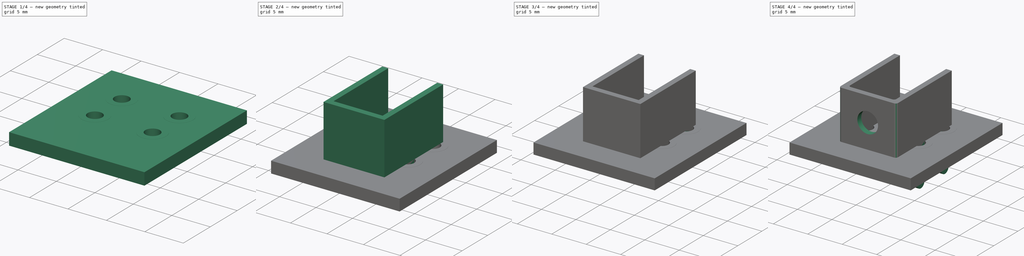
[diagram: build sequence overview — one tinted view per stage of 4, left to right]
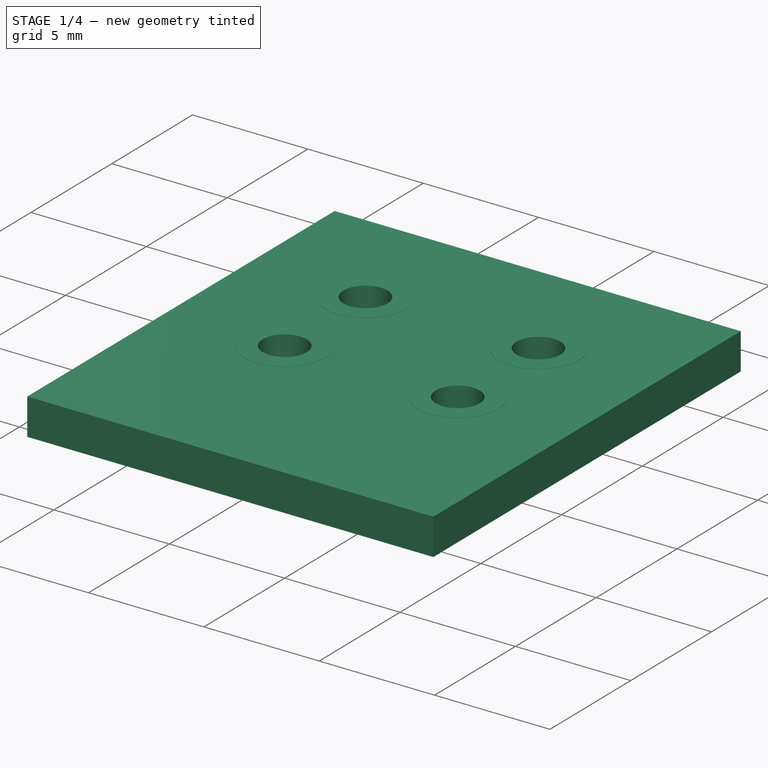
[diagram: stage 1 of 4 — iso view after this stage's code; geometry added in this stage tinted green]
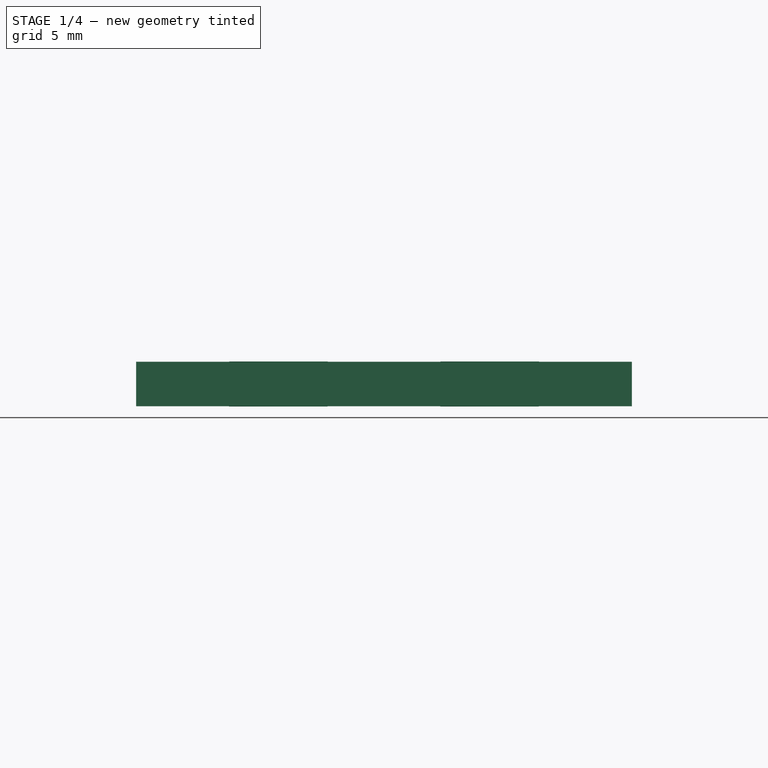
[diagram: stage 1 of 4 — front view after this stage's code; geometry added in this stage tinted green]
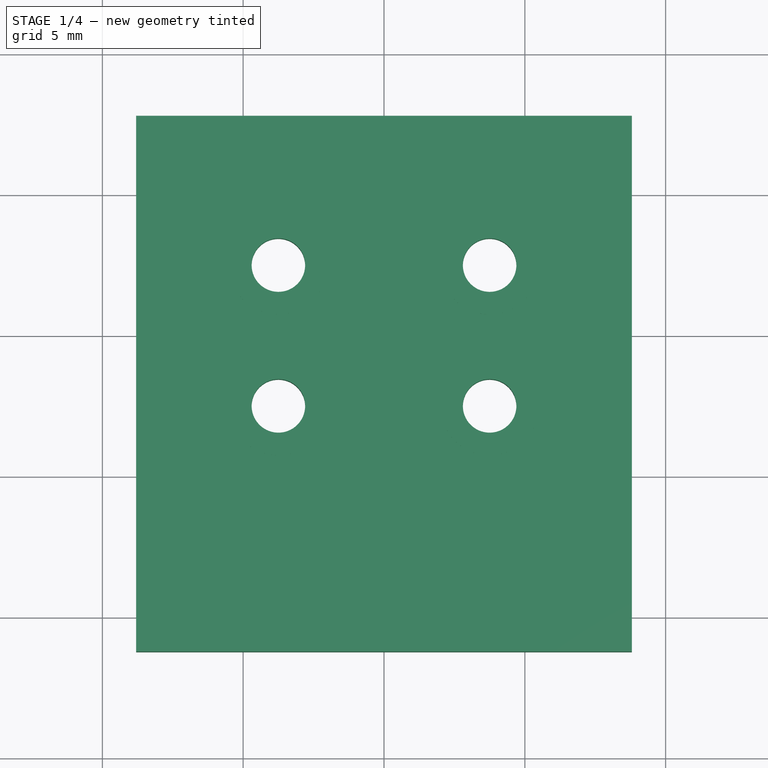
[diagram: stage 1 of 4 — top view after this stage's code; geometry added in this stage tinted green]
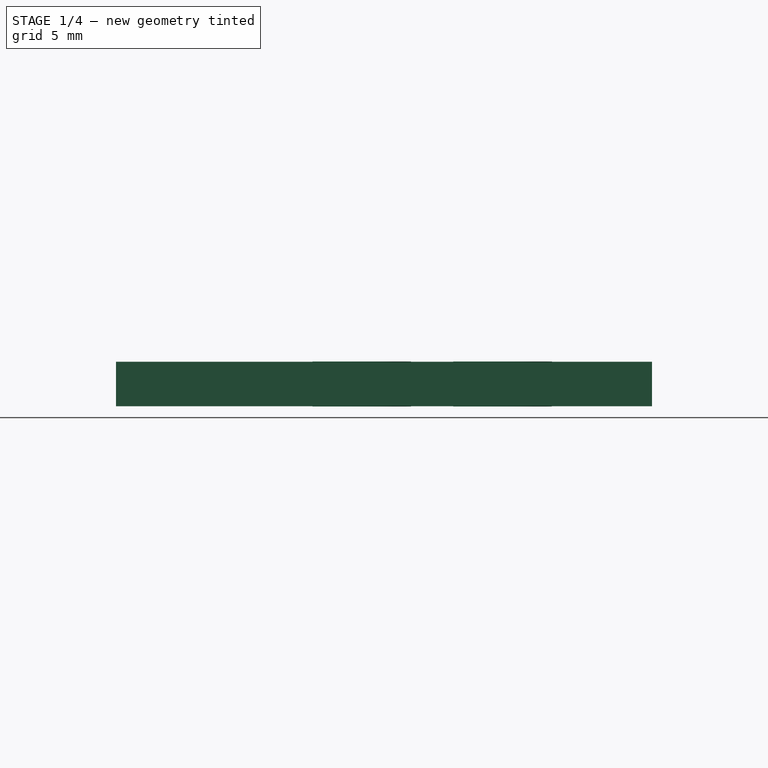
[diagram: stage 1 of 4 — right view after this stage's code; geometry added in this stage tinted green]
FCSTD DOCUMENT  (FreeCAD 0.17R13522 (Git))
Label: Keystone_7761
License: All rights reserved
LicenseURL: http://en.wikipedia.org/wiki/All_rights_reserved
objects: Sketcher::SketchObject×5, Part::FeaturePython×5, PartDesign::Pad×4, PartDesign::Mirrored×4, PartDesign::Fillet×2, PartDesign::MultiTransform×1, PartDesign::Pocket×1, App::DocumentObjectGroup×1, Part::Feature×1
note: 28 computed .brp shape members not serialized (recipe doc carries the construction recipe); baked Part::Feature solids carry a one-line shape summary decoded from their .brp

FEATURE [Part::FeaturePython] FCrtYd_lines  label="FCrtYd"  # a2plus imported part (geometry in sourceFile) (typed FeaturePython)
  fixedPosition = true
FEATURE [Part::FeaturePython] TopPads  # a2plus imported part (geometry in sourceFile) (typed FeaturePython)
  fixedPosition = true
FEATURE [Part::FeaturePython] BotPads  # a2plus imported part (geometry in sourceFile) (typed FeaturePython)
  fixedPosition = true
FEATURE [Part::FeaturePython] THPs  label="PTHs"  # a2plus imported part (geometry in sourceFile) (typed FeaturePython)
  fixedPosition = true
FEATURE [Part::FeaturePython] newPCB  label="Pcb"  # a2plus imported part (geometry in sourceFile) (typed FeaturePython)
  fixedPosition = true
FEATURE [App::DocumentObjectGroup] Keystone_Screw_Terminal_7761_RightAngle_fp
  Group = -> [FCrtYd_lines,TopPads,BotPads,THPs,newPCB]
FEATURE [Part::Feature] Shape001  label="Keystone_7761"
  shape: bbox 8.33 x 11.48 x 13 mm, 43 faces (baked)
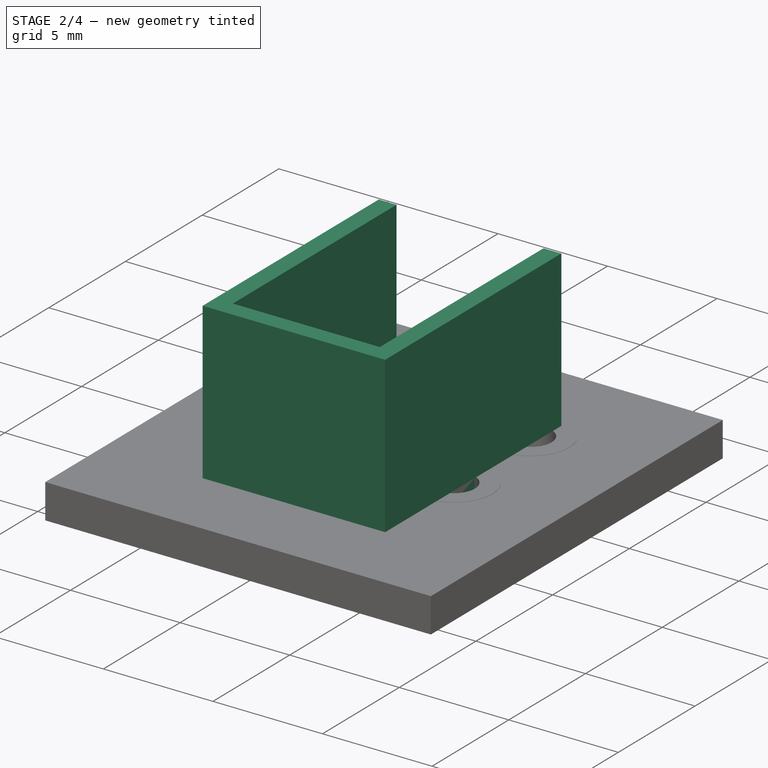
[diagram: stage 2 of 4 — iso view after this stage's code; geometry added in this stage tinted green]
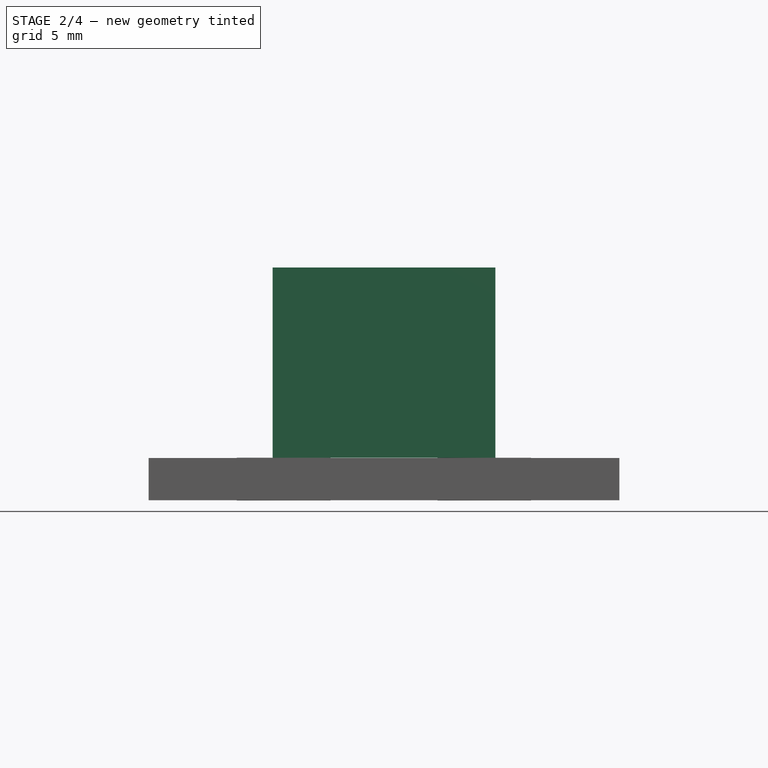
[diagram: stage 2 of 4 — front view after this stage's code; geometry added in this stage tinted green]
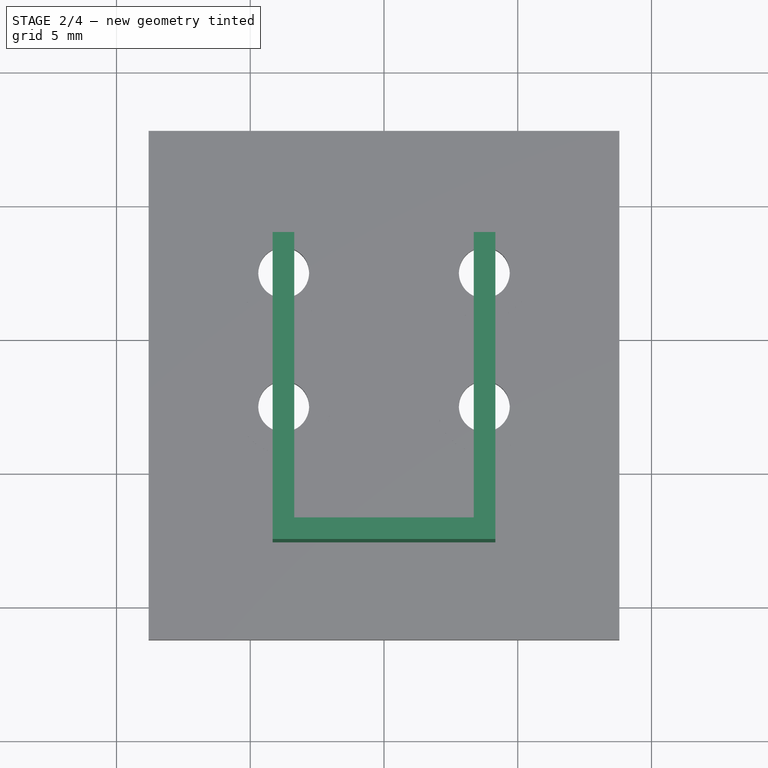
[diagram: stage 2 of 4 — top view after this stage's code; geometry added in this stage tinted green]
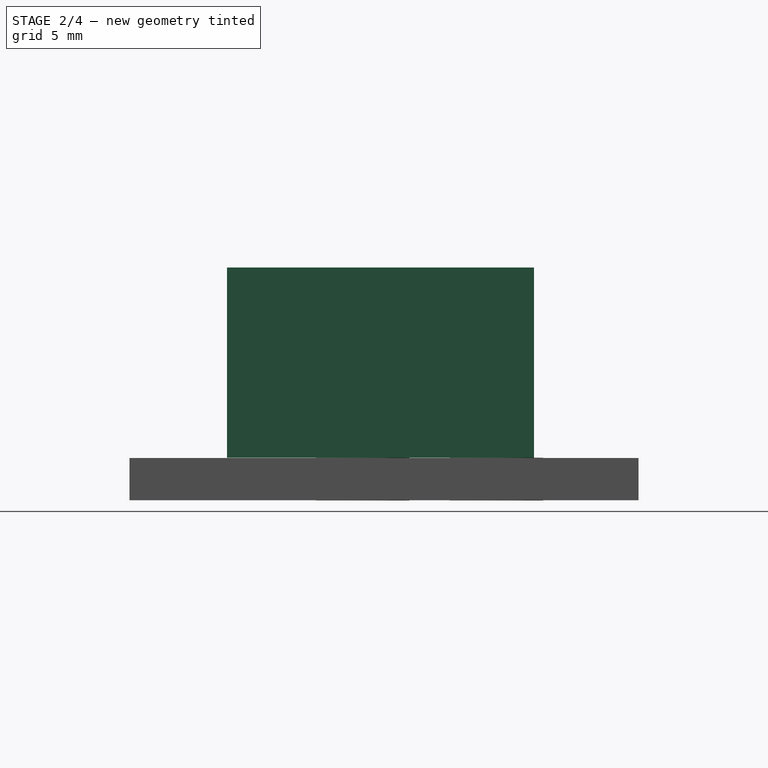
[diagram: stage 2 of 4 — right view after this stage's code; geometry added in this stage tinted green]
FEATURE [Sketcher::SketchObject] Sketch
  MapMode = 5
  expr: Constraints[12] = 1.8999999999999999 / 2
  sketch-geometry (18):
    g0: LineSegment StartX=-4.165 StartY=3.9 StartZ=0 EndX=-3.355 EndY=3.9 EndZ=0
    g1: LineSegment StartX=4.165 StartY=3.9 StartZ=0 EndX=4.165 EndY=-7.58 EndZ=0
    g2: LineSegment StartX=-4.165 StartY=-7.58 StartZ=0 EndX=-4.165 EndY=3.9 EndZ=0
    g3: LineSegment StartX=3.355 StartY=3.9 StartZ=0 EndX=3.355 EndY=-6.77 EndZ=0
    g4: LineSegment StartX=3.355 StartY=-6.77 StartZ=0 EndX=-3.355 EndY=-6.77 EndZ=0
    g5: LineSegment StartX=-3.355 StartY=-6.77 StartZ=0 EndX=-3.355 EndY=3.9 EndZ=0
    g6: LineSegment StartX=3.355 StartY=3.9 StartZ=0 EndX=4.165 EndY=3.9 EndZ=0
    g7: Circle [constr] CenterX=-3.75 CenterY=2.5 CenterZ=0 NormalX=0 NormalY=0 NormalZ=1 AngleXU=0 Radius=0.95
    g8: Circle [constr] CenterX=3.75 CenterY=2.5 CenterZ=0 NormalX=0 NormalY=0 NormalZ=1 AngleXU=0 Radius=0.95
    g9: Circle [constr] CenterX=3.75 CenterY=-2.5 CenterZ=0 NormalX=0 NormalY=0 NormalZ=1 AngleXU=0 Radius=0.95
    g10: Circle [constr] CenterX=-3.75 CenterY=-2.5 CenterZ=0 NormalX=0 NormalY=0 NormalZ=1 AngleXU=0 Radius=0.95
    g11: LineSegment [constr] StartX=-3.75 StartY=2.5 StartZ=0 EndX=3.75 EndY=2.5 EndZ=0
    g12: LineSegment [constr] StartX=3.75 StartY=2.5 StartZ=0 EndX=3.75 EndY=-2.5 EndZ=0
    g13: LineSegment [constr] StartX=3.75 StartY=-2.5 StartZ=0 EndX=-3.75 EndY=-2.5 EndZ=0
    g14: LineSegment [constr] StartX=-3.75 StartY=-2.5 StartZ=0 EndX=-3.75 EndY=2.5 EndZ=0
    g15: LineSegment StartX=4.165 StartY=-7.58 StartZ=0 EndX=-4.165 EndY=-7.58 EndZ=0
    g16: LineSegment [constr] StartX=-3.355 StartY=3.9 StartZ=0 EndX=3.355 EndY=3.9 EndZ=0
    g17: LineSegment [constr] StartX=0 StartY=-6.77 StartZ=0 EndX=0 EndY=-7.58 EndZ=0
  constraints (50):
    c: Coincident(g6,g1)
    c: Coincident(g2,g0)
    c: Horizontal(g0)
    c: Vertical(g1)
    c: Vertical(g2)
    c: Coincident(g3,g4)
    c: Coincident(g4,g5)
    c: Horizontal(g4)
    c: Vertical(g3)
    c: Vertical(g5)
    c: Coincident(g3,g6)
    c: Coincident(g5,g0)
    c: Radius(g7) = 0.95
    c: Equal(g7,g8)
    c: Equal(g8,g9)
    c: Equal(g9,g10)
    c: Coincident(g11,g12)
    c: Coincident(g12,g13)
    c: Coincident(g13,g14)
    c: Coincident(g14,g11)
    c: Horizontal(g11)
    c: Horizontal(g13)
    c: Vertical(g12)
    c: Vertical(g14)
    c: Coincident(g11,g7)
    c: Coincident(g12,g9)
    c: Coincident(g8,g11)
    c: Coincident(g13,g10)
    c: Symmetric(g8,g7,g-2)
    c: Symmetric(g8,g9,g-1)
    c: DistanceX(g11,g11) = 7.5
    c: DistanceY(g12,g12) = 5
    c: Horizontal(g6)
    c: Horizontal(g15)
    c: Coincident(g1,g15)
    c: Coincident(g15,g2)
    c: Coincident(g16,g0)
    c: Coincident(g16,g3)
    c: Horizontal(g16)
    c: DistanceX(g6,g6) = 0.81
    c: Equal(g6,g0)
    c: PointOnObject(g17,g-2)
    c: PointOnObject(g17,g-2)
    c: PointOnObject(g17,g4)
    c: PointOnObject(g17,g15)
    c: Equal(g17,g6)
    c: Symmetric(g3,g0,g-2)
    c: DistanceX(g0,g1) = 8.33
    c: DistanceY(g1,g9) = 5.08
    c: DistanceY(g2,g2) = 11.48
FEATURE [PartDesign::Pad] Pad
  Length = 7.11
  Length2 = 100
  Profile = -> Sketch
  Refine = true
  Type = 0
FEATURE [Sketcher::SketchObject] Sketch001
  ExternalGeometry = -> [Pad]
  MapMode = 5
  Placement = pos=(0,0,0) rot=(1,0,0;3.14159rad)
  Support = -> [Pad]
  expr: Constraints[15] = 1.52 / 2
  sketch-geometry (5):
    g0: LineSegment StartX=-4.165 StartY=4.07 StartZ=0 EndX=-3.355 EndY=4.07 EndZ=0
    g1: LineSegment StartX=-3.355 StartY=4.07 StartZ=0 EndX=-3.355 EndY=1.74 EndZ=0
    g2: LineSegment StartX=-3.355 StartY=1.74 StartZ=0 EndX=-4.165 EndY=1.74 EndZ=0
    g3: LineSegment StartX=-4.165 StartY=1.74 StartZ=0 EndX=-4.165 EndY=4.07 EndZ=0
    g4: LineSegment [constr] StartX=-4.165 StartY=2.5 StartZ=0 EndX=-3.355 EndY=2.5 EndZ=0
  constraints (16):
    c: Coincident(g0,g1)
    c: Coincident(g1,g2)
    c: Coincident(g2,g3)
    c: Coincident(g3,g0)
    c: Horizontal(g0)
    c: Horizontal(g2)
    c: Vertical(g1)
    c: Vertical(g3)
    c: PointOnObject(g0,g-4)
    c: PointOnObject(g1,g-5)
    c: DistanceY(g0,g-4) = 3.51
    c: PointOnObject(g4,g3)
    c: PointOnObject(g4,g1)
    c: Horizontal(g4)
    c: DistanceY(g4,g-4) = 5.08
    c: DistanceY(g2,g4) = 0.76
FEATURE [PartDesign::Pad] Pad001
  BaseFeature = -> Pad
  Length = 0.81
  Length2 = 100
  Profile = -> Sketch001
  Refine = true
  Type = 0
FEATURE [PartDesign::Mirrored] Mirrored
  BaseFeature = -> Pad001
  Originals = -> [Pad001]
  Refine = true
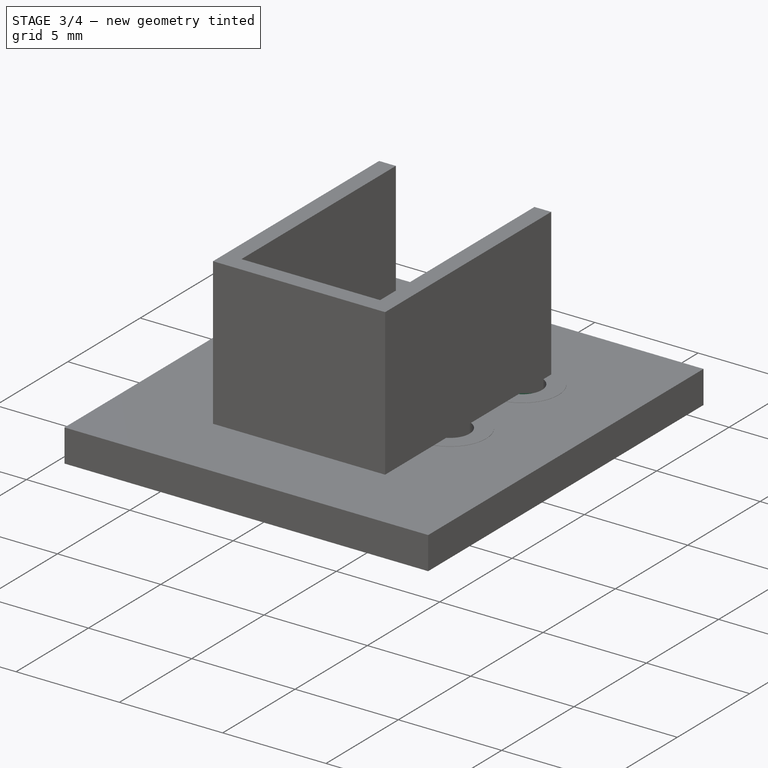
[diagram: stage 3 of 4 — iso view after this stage's code; geometry added in this stage tinted green]
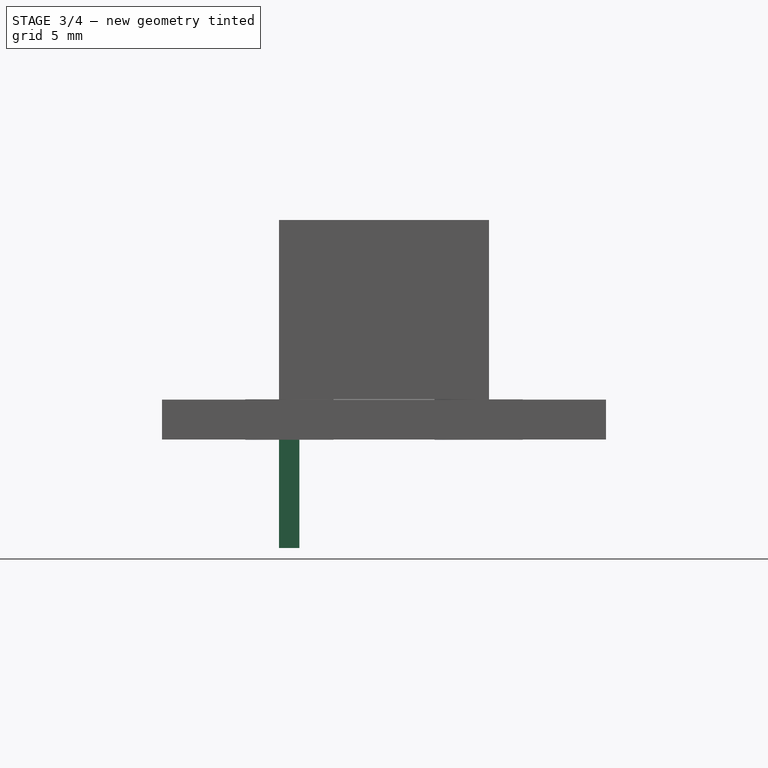
[diagram: stage 3 of 4 — front view after this stage's code; geometry added in this stage tinted green]
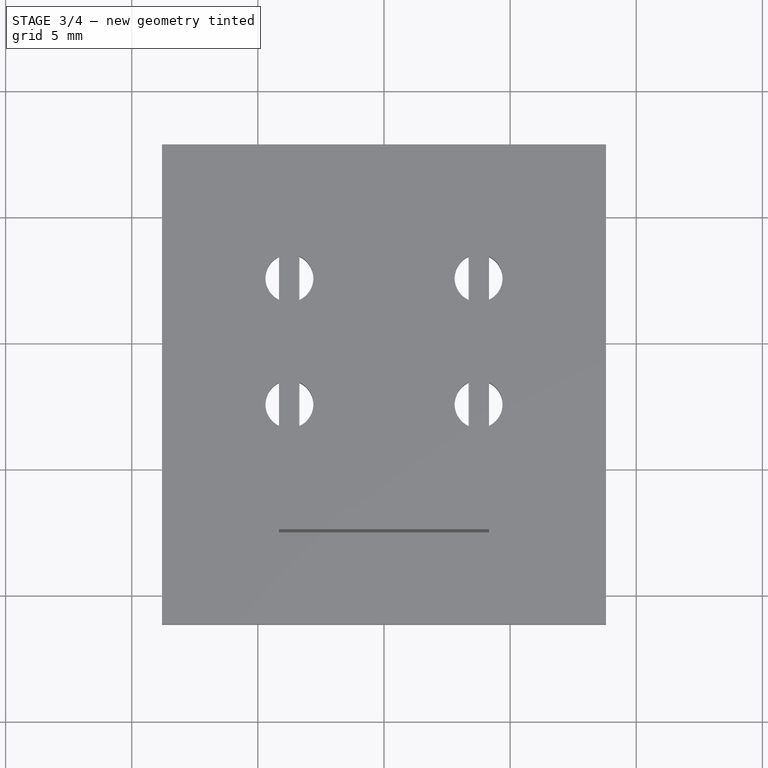
[diagram: stage 3 of 4 — top view after this stage's code; geometry added in this stage tinted green]
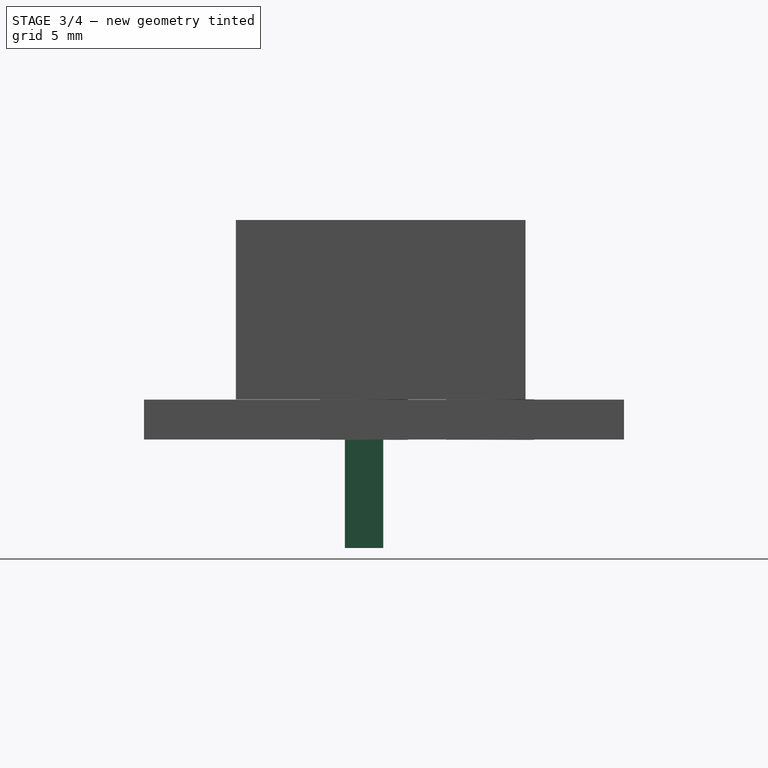
[diagram: stage 3 of 4 — right view after this stage's code; geometry added in this stage tinted green]
FEATURE [Sketcher::SketchObject] Sketch002
  ExternalGeometry = -> [Mirrored]
  MapMode = 5
  Placement = pos=(0,0,0) rot=(1,0,0;3.14159rad)
  Support = -> [Mirrored]
  expr: Constraints[18] = 1.52 / 2
  expr: Constraints[13] = 1.52 / 2
  sketch-geometry (6):
    g0: LineSegment StartX=-3.355 StartY=-3.9 StartZ=0 EndX=-4.165 EndY=-3.9 EndZ=0
    g1: LineSegment StartX=-4.165 StartY=-3.9 StartZ=0 EndX=-4.165 EndY=-1.74 EndZ=0
    g2: LineSegment StartX=-4.165 StartY=-1.74 StartZ=0 EndX=-3.355 EndY=-1.74 EndZ=0
    g3: LineSegment StartX=-3.355 StartY=-1.74 StartZ=0 EndX=-3.355 EndY=-3.9 EndZ=0
    g4: LineSegment [constr] StartX=-4.165 StartY=2.5 StartZ=0 EndX=-3.355 EndY=2.5 EndZ=0
    g5: LineSegment [constr] StartX=-4.165 StartY=-2.5 StartZ=0 EndX=-3.355 EndY=-2.5 EndZ=0
  constraints (19):
    c: Coincident(g0,g1)
    c: Coincident(g1,g2)
    c: Coincident(g2,g3)
    c: Coincident(g3,g0)
    c: Horizontal(g0)
    c: Horizontal(g2)
    c: Vertical(g1)
    c: Vertical(g3)
    c: Coincident(g0,g-5)
    c: PointOnObject(g1,g-4)
    c: PointOnObject(g4,g-7)
    c: PointOnObject(g4,g-6)
    c: Horizontal(g4)
    c: DistanceY(g-7,g4) = 0.76
    c: PointOnObject(g5,g1)
    c: PointOnObject(g5,g3)
    c: Horizontal(g5)
    c: DistanceY(g5,g4) = 5
    c: DistanceY(g5,g2) = 0.76
FEATURE [PartDesign::Pad] Pad002
  BaseFeature = -> Mirrored
  Length = 10
  Length2 = 100
  Profile = -> Sketch002
  Refine = true
  Type = 3
  UpToFace = -> Mirrored [Face16]
FEATURE [PartDesign::Mirrored] Mirrored001
  BaseFeature = -> Pad002
  Originals = -> [Pad002]
  Refine = true
FEATURE [Sketcher::SketchObject] Sketch003
  ExternalGeometry = -> [Mirrored001]
  MapMode = 5
  Placement = pos=(0,0,-0.81) rot=(1,0,0;3.14159rad)
  Support = -> [Mirrored001]
  sketch-geometry (4):
    g0: LineSegment StartX=-4.165 StartY=1.74 StartZ=0 EndX=-3.355 EndY=1.74 EndZ=0
    g1: LineSegment StartX=-3.355 StartY=1.74 StartZ=0 EndX=-3.355 EndY=3.26 EndZ=0
    g2: LineSegment StartX=-3.355 StartY=3.26 StartZ=0 EndX=-4.165 EndY=3.26 EndZ=0
    g3: LineSegment StartX=-4.165 StartY=3.26 StartZ=0 EndX=-4.165 EndY=1.74 EndZ=0
  constraints (11):
    c: Coincident(g0,g1)
    c: Coincident(g1,g2)
    c: Coincident(g2,g3)
    c: Coincident(g3,g0)
    c: Horizontal(g0)
    c: Horizontal(g2)
    c: Vertical(g1)
    c: Vertical(g3)
    c: Coincident(g0,g-4)
    c: PointOnObject(g1,g-5)
    c: DistanceY(g3,g3) = 1.52
FEATURE [PartDesign::Pad] Pad003
  BaseFeature = -> Mirrored001
  Length = 5.08
  Length2 = 100
  Profile = -> Sketch003
  Refine = true
  Type = 0
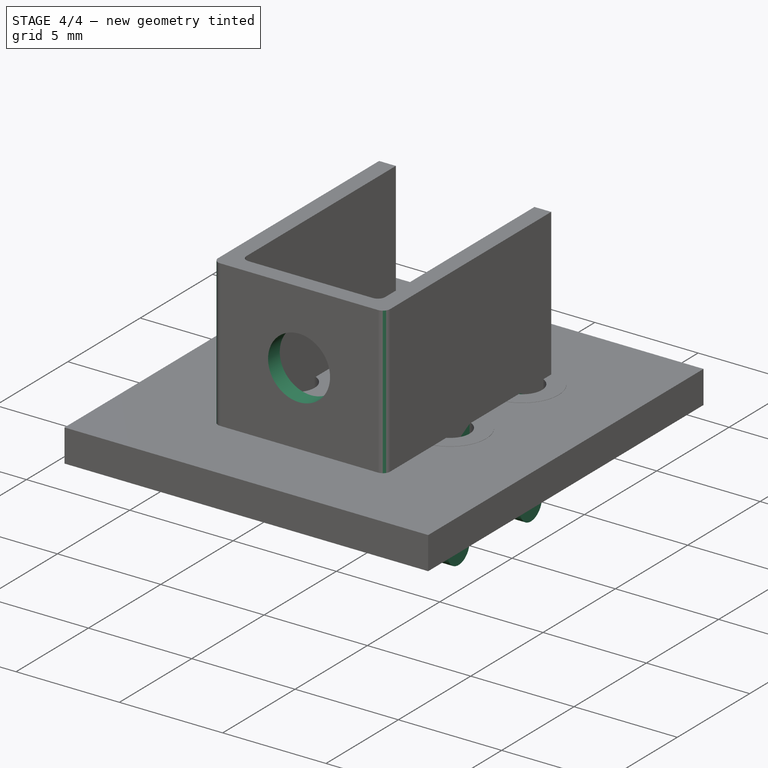
[diagram: stage 4 of 4 — iso view after this stage's code; geometry added in this stage tinted green]
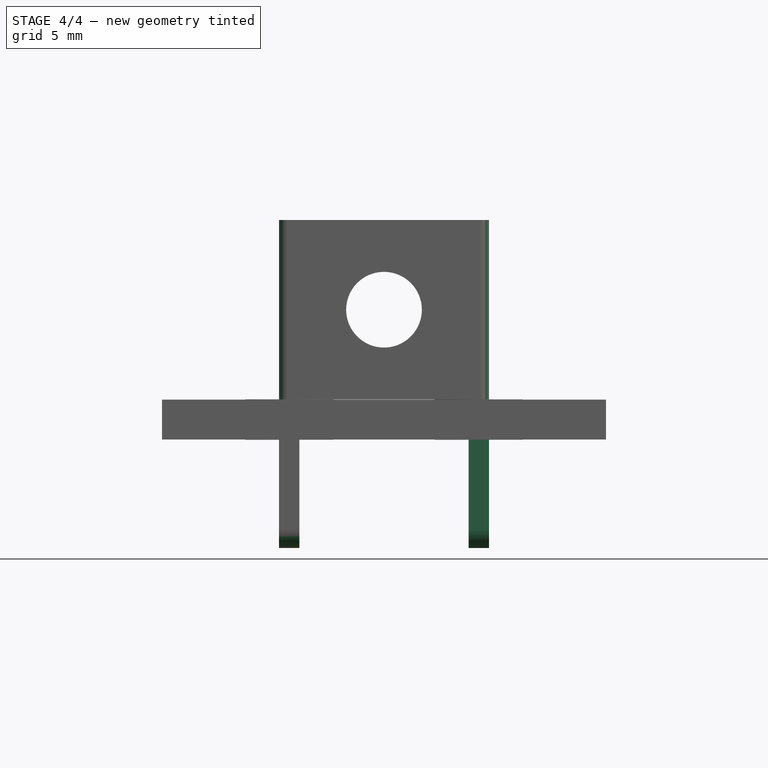
[diagram: stage 4 of 4 — front view after this stage's code; geometry added in this stage tinted green]
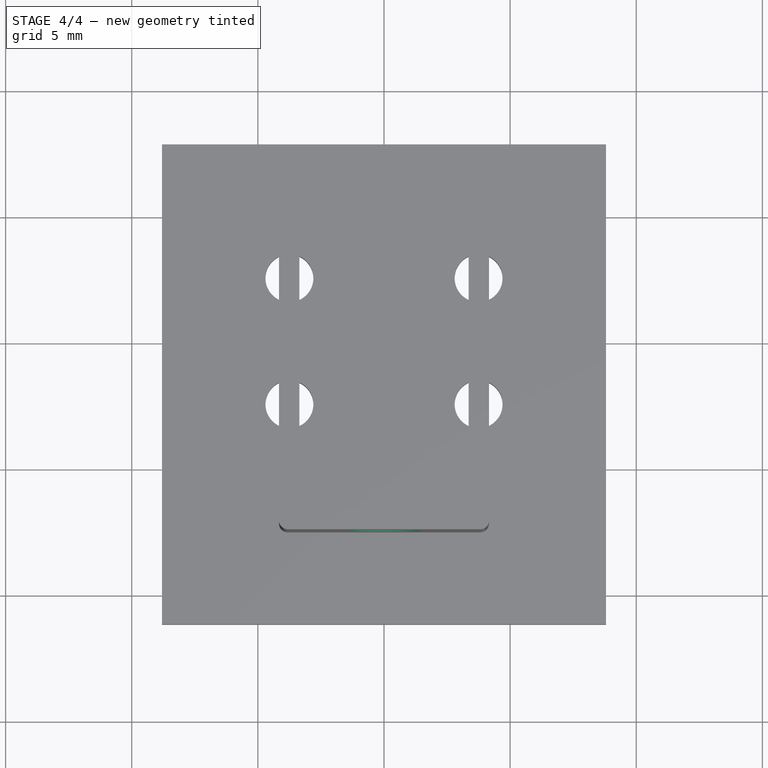
[diagram: stage 4 of 4 — top view after this stage's code; geometry added in this stage tinted green]
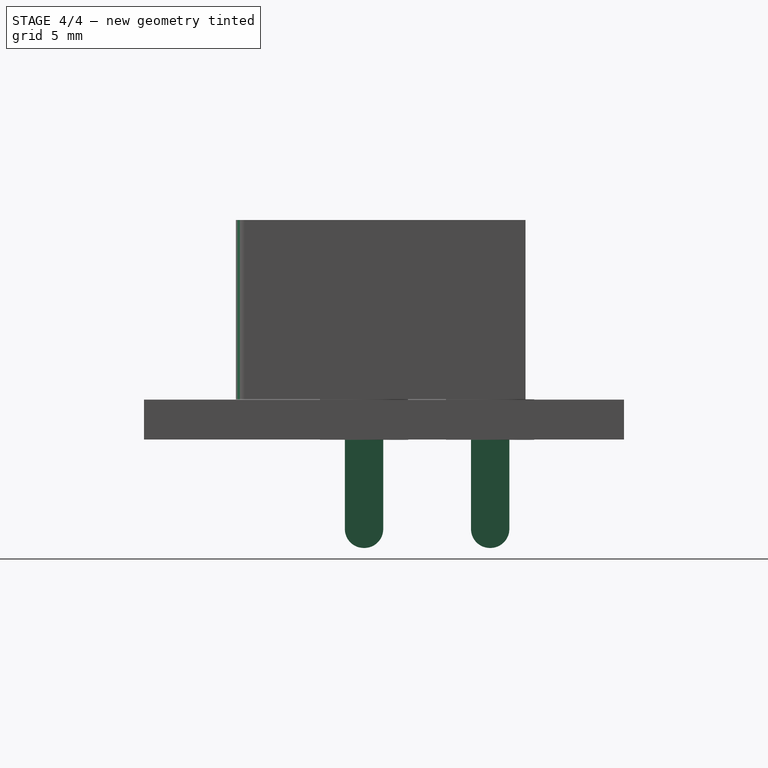
[diagram: stage 4 of 4 — right view after this stage's code; geometry added in this stage tinted green]
FEATURE [PartDesign::Mirrored] Mirrored002
  MirrorPlane = -> Sketch003 [V_Axis]
  Refine = true
FEATURE [PartDesign::Mirrored] Mirrored003
  Refine = true
FEATURE [PartDesign::MultiTransform] MultiTransform
  BaseFeature = -> Pad003
  Originals = -> [Pad003]
  Refine = true
  Transformations = -> [Mirrored002,Mirrored003]
FEATURE [PartDesign::Fillet] Fillet
  Base = -> MultiTransform [Edge46,Edge48,Edge72,Edge70,Edge64,Edge66,Edge60,Edge58]
  BaseFeature = -> MultiTransform
  Radius = 0.75
FEATURE [PartDesign::Fillet] Fillet001
  Base = -> Fillet [Edge64,Edge34,Edge50,Edge12]
  BaseFeature = -> Fillet
  Radius = 0.35
FEATURE [Sketcher::SketchObject] Sketch004
  MapMode = 5
  Placement = pos=(0,-7.58,0) rot=(1,0,0;1.5708rad)
  Support = -> [Fillet001]
  expr: Constraints[2] = 7.1100000000000003 / 2
  expr: Constraints[1] = 3 / 2
  sketch-geometry (1):
    g0: Circle CenterX=0 CenterY=3.555 CenterZ=0 NormalX=0 NormalY=0 NormalZ=1 AngleXU=0 Radius=1.5
  constraints (3):
    c: PointOnObject(g0,g-2)
    c: Radius(g0) = 1.5
    c: DistanceY(g-1,g0) = 3.555
FEATURE [PartDesign::Pocket] Pocket
  BaseFeature = -> Fillet001
  Length = 5
  Length2 = 100
  Profile = -> Sketch004
  Refine = true
  Type = 1
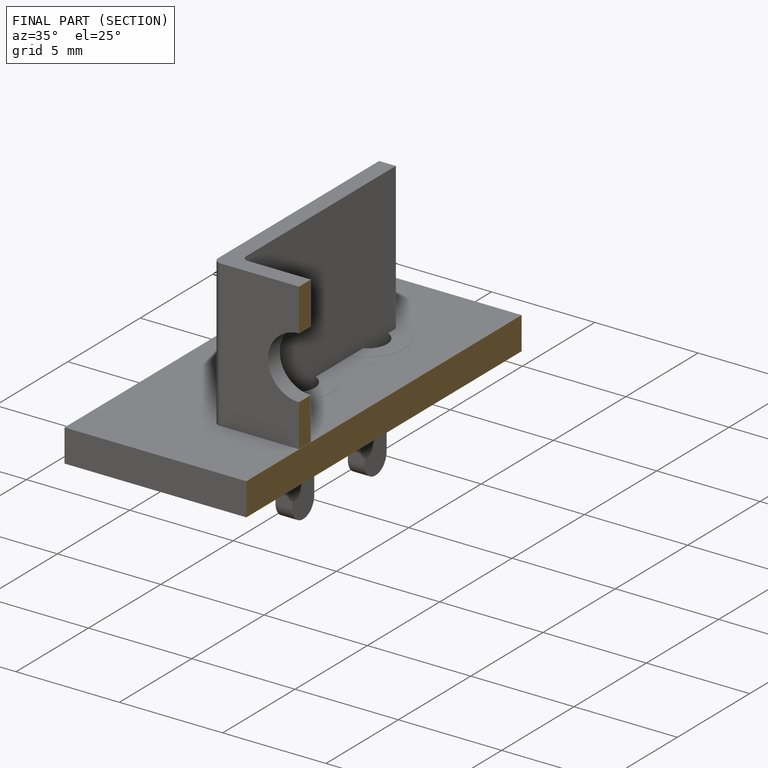
[diagram: finished part — half-section view (interior)]
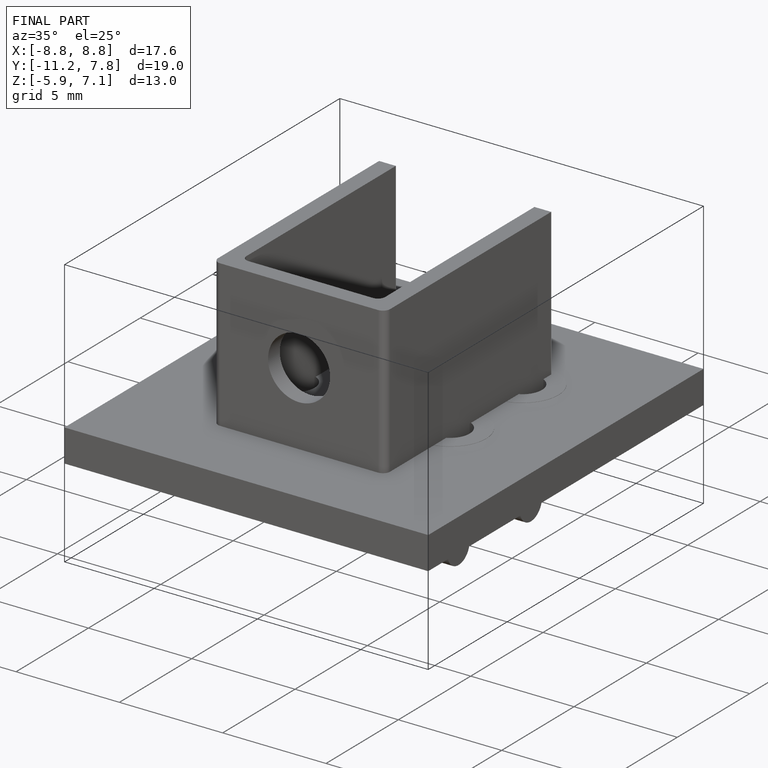
[diagram: finished part — iso view with bounding-box wireframe]
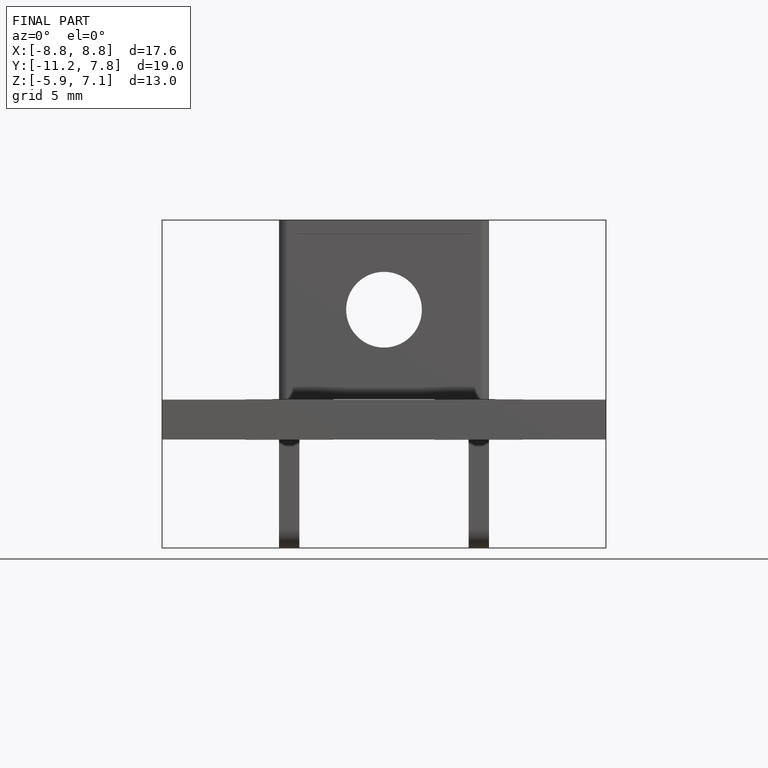
[diagram: finished part — front view with bounding-box wireframe]
